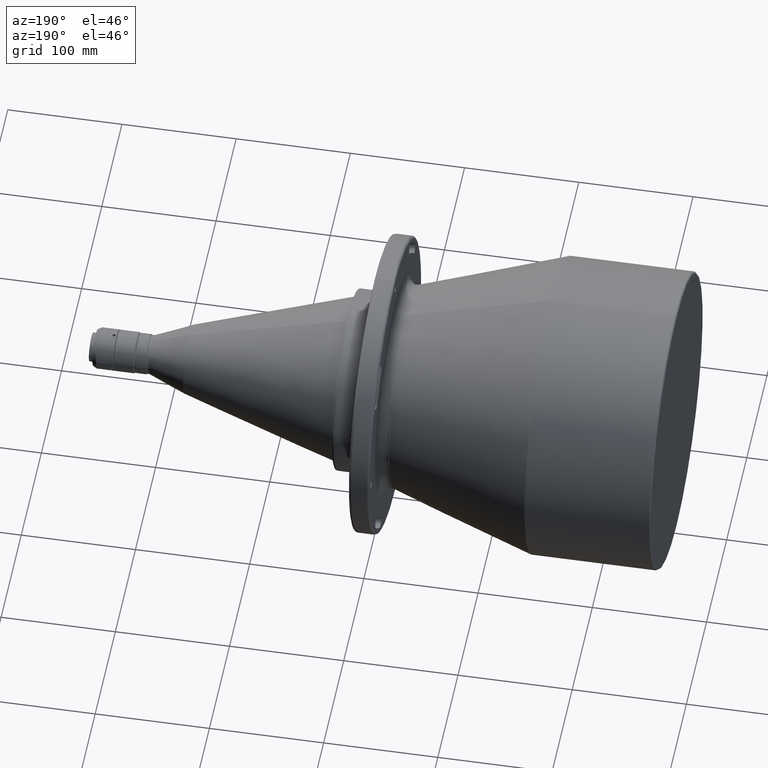
[diagram: clean part render]
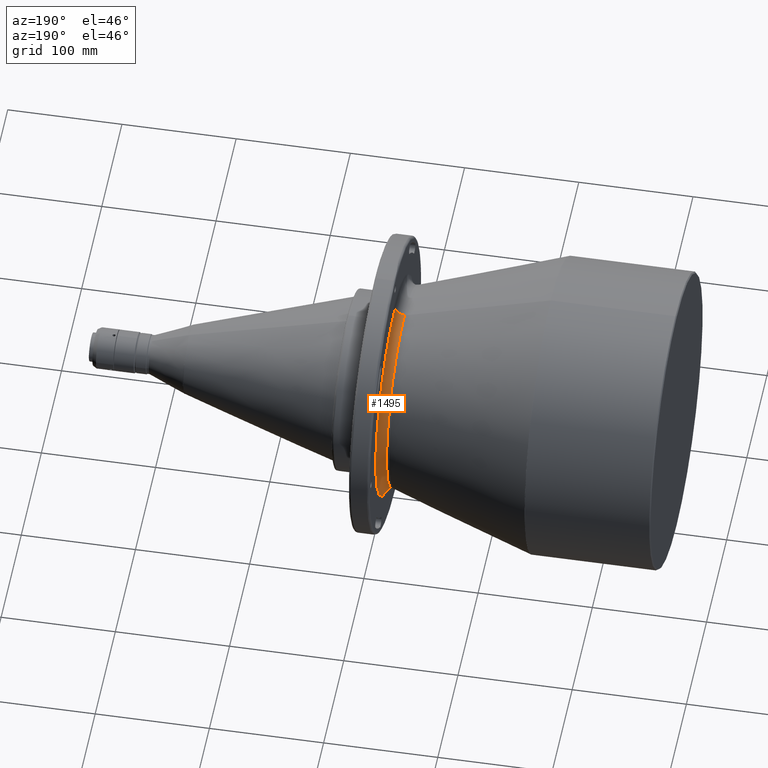
[diagram: same view with one face highlighted and labeled with its STEP entity id]
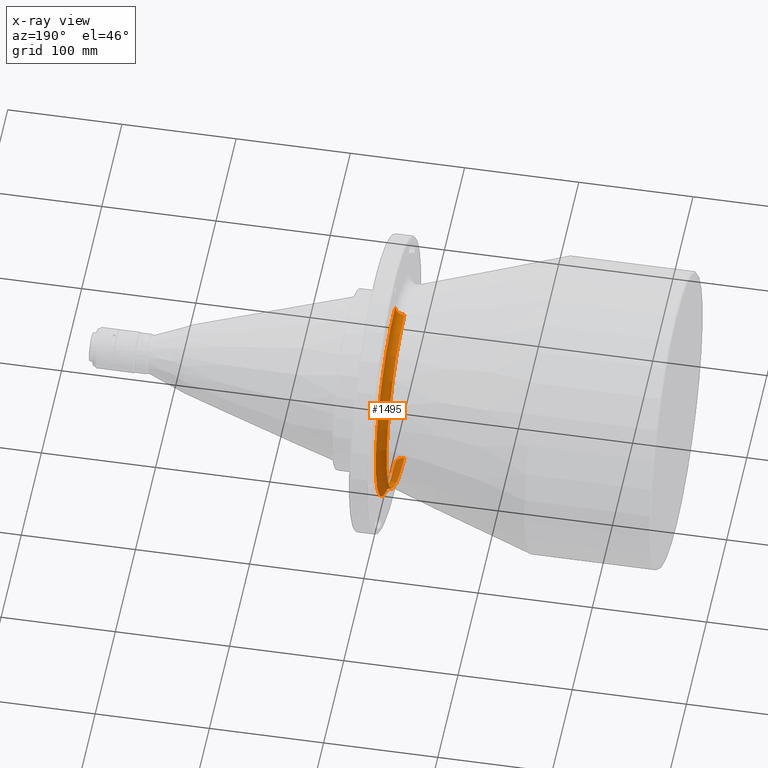
[diagram: x-ray of the same camera — body ghosted, the highlighted face saturated]
A machine part, auxiliary view. The second image highlights one B-rep face of the part: STEP entity #1495.
The next image is the same camera in x-ray: the body ghosted, the highlighted face saturated — about 9% of this face is hidden behind the body in this view.
In plain terms, the highlighted toroidal blend (fillet) surface has major radius 96.7765 mm and minor (blend) radius 8 mm.
Its self-contained STEP definition (entity closure, byte-faithful):
#71 = CARTESIAN_POINT ( 'NONE',  ( -17.90000000069108000, 1.185170161617166200E-014, 96.77648791817590300 ) ) ;
#238 = EDGE_LOOP ( 'NONE', ( #2486, #2355, #1262, #2684 ) ) ;
#273 = AXIS2_PLACEMENT_3D ( 'NONE', #71, #2042, #580 ) ;
#293 = DIRECTION ( 'NONE',  ( 0.0000000000000000000, 0.0000000000000000000, -1.000000000000000000 ) ) ;
#303 = DIRECTION ( 'NONE',  ( 1.000000000000000000, 0.0000000000000000000, 0.0000000000000000000 ) ) ;
#483 = CIRCLE ( 'NONE', #1478, 88.77648791830564800 ) ;
#511 = DIRECTION ( 'NONE',  ( 0.0000000000000000000, 0.0000000000000000000, -1.000000000000000000 ) ) ;
#523 = CARTESIAN_POINT ( 'NONE',  ( -17.90000000069108000, 0.0000000000000000000, -96.77648791817590300 ) ) ;
#580 = DIRECTION ( 'NONE',  ( 0.0000000000000000000, 1.224646799147352700E-016, 1.000000000000000000 ) ) ;
#628 = CARTESIAN_POINT ( 'NONE',  ( -17.89999999769401000, 0.0000000000000000000, -88.77648791848788800 ) ) ;
#689 = CIRCLE ( 'NONE', #273, 8.000000000197445600 ) ;
#729 = VERTEX_POINT ( 'NONE', #1617 ) ;
#779 = CARTESIAN_POINT ( 'NONE',  ( -17.89999999743006900, 0.0000000000000000000, 88.77648791845751900 ) ) ;
#792 = CARTESIAN_POINT ( 'NONE',  ( -9.900000000493635700, 1.185170161598393100E-014, 96.77648791664294900 ) ) ;
#949 = DIRECTION ( 'NONE',  ( -1.000000000000000000, 1.954034808816433900E-017, -0.0000000000000000000 ) ) ;
#956 = VERTEX_POINT ( 'NONE', #792 ) ;
#960 = DIRECTION ( 'NONE',  ( 1.000000000000000000, 0.0000000000000000000, 0.0000000000000000000 ) ) ;
#979 = DIRECTION ( 'NONE',  ( 0.0000000000000000000, -1.000000000000000000, 0.0000000000000000000 ) ) ;
#1048 = FACE_OUTER_BOUND ( 'NONE', #238, .T. ) ;
#1186 = CARTESIAN_POINT ( 'NONE',  ( -9.900000000493635700, 0.0000000000000000000, 0.0000000000000000000 ) ) ;
#1262 = ORIENTED_EDGE ( 'NONE', *, *, #2329, .T. ) ;
#1274 = EDGE_CURVE ( 'NONE', #1579, #1675, #483, .T. ) ;
#1433 = CARTESIAN_POINT ( 'NONE',  ( -17.89999999611035300, 0.0000000000000000000, 0.0000000000000000000 ) ) ;
#1478 = AXIS2_PLACEMENT_3D ( 'NONE', #1433, #949, #2687 ) ;
#1495 = ADVANCED_FACE ( 'NONE', ( #1048 ), #1788, .F. ) ;
#1579 = VERTEX_POINT ( 'NONE', #779 ) ;
#1606 = CIRCLE ( 'NONE', #2234, 8.000000000197445600 ) ;
#1617 = CARTESIAN_POINT ( 'NONE',  ( -9.900000000493635700, 0.0000000000000000000, -96.77648791664294900 ) ) ;
#1675 = VERTEX_POINT ( 'NONE', #628 ) ;
#1788 = TOROIDAL_SURFACE ( 'NONE', #2592, 96.77648791817590300, 8.000000000197442100 ) ;
#1853 = EDGE_CURVE ( 'NONE', #956, #1579, #689, .T. ) ;
#2042 = DIRECTION ( 'NONE',  ( 0.0000000000000000000, 1.000000000000000000, -1.224646799147353200E-016 ) ) ;
#2139 = CIRCLE ( 'NONE', #2347, 96.77648791510999600 ) ;
#2140 = EDGE_CURVE ( 'NONE', #729, #956, #2139, .T. ) ;
#2234 = AXIS2_PLACEMENT_3D ( 'NONE', #523, #979, #511 ) ;
#2329 = EDGE_CURVE ( 'NONE', #729, #1675, #1606, .T. ) ;
#2347 = AXIS2_PLACEMENT_3D ( 'NONE', #1186, #960, #2690 ) ;
#2355 = ORIENTED_EDGE ( 'NONE', *, *, #2140, .F. ) ;
#2486 = ORIENTED_EDGE ( 'NONE', *, *, #1853, .F. ) ;
#2592 = AXIS2_PLACEMENT_3D ( 'NONE', #2776, #303, #293 ) ;
#2684 = ORIENTED_EDGE ( 'NONE', *, *, #1274, .F. ) ;
#2687 = DIRECTION ( 'NONE',  ( 0.0000000000000000000, -1.000000000000000000, 0.0000000000000000000 ) ) ;
#2690 = DIRECTION ( 'NONE',  ( 0.0000000000000000000, 0.0000000000000000000, -1.000000000000000000 ) ) ;
#2776 = CARTESIAN_POINT ( 'NONE',  ( -17.90000000069108000, 0.0000000000000000000, 0.0000000000000000000 ) ) ;